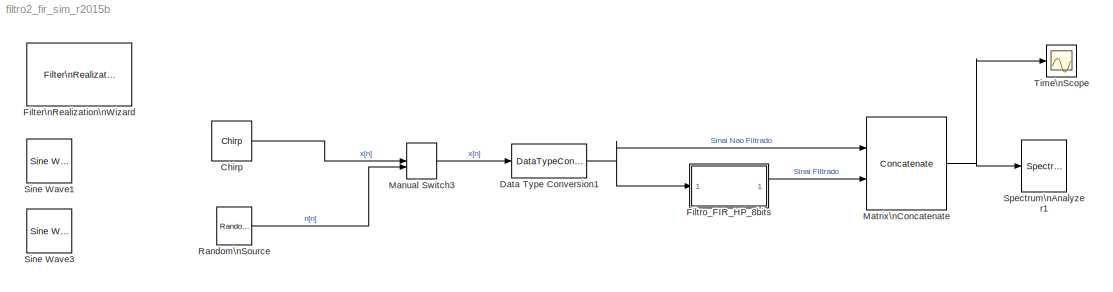
MODEL filtro2_fir_sim_r2015b
KIND model
BLOCK [Reference] Chirp  REF=dspsrcs4/Chirp
  OutputFrames = on
  Ports = [0, 1]
  SID = 1
  SourceBlock = dspsrcs4/Chirp
  SourceType = Chirp
  Ts = Ta
  Tsweep = 1
  datatype = Double
  f0 = 0
  f1 = fa/2
  mode = Unidirectional
  phase = 0
  spf = spf
  sweep = Linear
  t1 = 1
BLOCK [DataTypeConversion] Data Type Conversion1
  RndMeth = Floor
  SID = 22
  SaturateOnIntegerOverflow = off
BLOCK [Reference] Filter\nRealization\nWizard  REF=dsparch4/Filter\nRealization\nWizard
  Ports = []
  SID = 44
  SourceBlock = dsparch4/Filter\nRealization\nWizard
  SourceType = Filter Realization Wizard
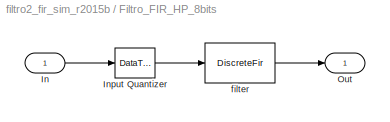
BLOCK [SubSystem] Filtro_FIR_HP_8bits
  Ports = [1, 1]
  RequestExecContextInheritance = off
  SID = 45
  Tag = BlockMethodSubSystem
BLOCK [Inport] Filtro_FIR_HP_8bits/In
  IconDisplay = Port number
  SID = 46
BLOCK [DataTypeConversion] Filtro_FIR_HP_8bits/Input Quantizer
  OutDataTypeStr = fixdt(1,16,15)
  RndMeth = Round
  SID = 47
BLOCK [Outport] Filtro_FIR_HP_8bits/Out
  IconDisplay = Port number
  SID = 49
BLOCK [DiscreteFir] Filtro_FIR_HP_8bits/filter
  AccumDataTypeStr = fixdt(true,25,23)
  CoefDataTypeStr = fixdt(true,8,8)
  Coefficients = [-0.00532709506172761044 0.00150016559407488014 0.00628495279823278012 -0.00636828988327803585 -0.00403452349221034706 0.0111906482400220622 -0.00231967061384724497 -0.0130613282623932899 0.01189990154197915 0.00894421000991611065 -0.0216421575545340458 0.0030362156599829525 0.0265962407774834042 -0.0224925554974460436 -0.0206671663559229203 0.0463858207415749138 -0.00352514866909382297 -0.0696283...<+578ch>
  FilterStructure = Direct form symmetric
  InputPortMap = u0
  OutDataTypeStr = fixdt(true,25,23)
  OutputPortMap = o0
  Ports = [1, 1]
  ProductDataTypeStr = fixdt(true,24,23)
  RndMeth = Convergent
  SID = 48
  TapSumDataTypeStr = fixdt(true,17,15)
BLOCK [ManualSwitch] Manual Switch3
  CurrentSetting = 0
  SID = 33
BLOCK [Concatenate] Matrix\nConcatenate
  ConcatenateDimension = 2
  Mode = Multidimensional array
  Ports = [2, 1]
  SID = 28
BLOCK [Reference] Random\nSource  REF=dspsrcs4/Random\nSource
  CltLength = 12
  DataType = Single
  IsInherit = off
  MaxVal = 1
  MeanVal = 0
  MinVal = -1
  NormMethod = Ziggurat
  OutComplex = Real
  OutputFrames = on
  Ports = [0, 1]
  RepMode = Not repeatable
  SID = 32
  SampFrame = spf
  SampMode = Discrete
  SampTime = Ta
  SourceBlock = dspsrcs4/Random\nSource
  SourceType = Random Source
  SrcType = Uniform
  UserData = DataTag0
  UserDataPersistent = on
  VarVal = 1
  rawSeed = 1
BLOCK [Reference] Sine Wave1  REF=dspsrcs4/Sine Wave
  Amplitude = 1
  CompMethod = Trigonometric fcn
  Frequency = 100
  LastOutDataTypeStr = double
  OutComplex = Real
  OutDataTypeStr = double
  OutputFrames = on
  Phase = 0
  Ports = [0, 1]
  ResetState = Restart at time zero
  SID = 38
  SampleMode = Discrete
  SampleTime = 1/8000
  SamplesPerFrame = 1
  SourceBlock = dspsrcs4/Sine Wave
  SourceType = Sine Wave
  TableSize = Speed
  additionalParams = off
  allowOverrides = on
  dataType = double
  fracBitsMode = Best precision
  numFracBits = 15
  udDataType = sfix(16)
  wordLen = 16
BLOCK [Reference] Sine Wave3  REF=dspsrcs4/Sine Wave
  Amplitude = 1
  CompMethod = Trigonometric fcn
  Frequency = 100
  LastOutDataTypeStr = double
  OutComplex = Real
  OutDataTypeStr = double
  OutputFrames = on
  Phase = 0
  Ports = [0, 1]
  ResetState = Restart at time zero
  SID = 40
  SampleMode = Discrete
  SampleTime = 1/8000
  SamplesPerFrame = 1
  SourceBlock = dspsrcs4/Sine Wave
  SourceType = Sine Wave
  TableSize = Speed
  additionalParams = off
  allowOverrides = on
  dataType = double
  fracBitsMode = Best precision
  numFracBits = 15
  udDataType = sfix(16)
  wordLen = 16
BLOCK [SpectrumAnalyzer] Spectrum\nAnalyzer1
  Ports = [1]
  SID = 30
  ScopeSpecificationString = spbscopes.SpectrumAnalyzerBlockCfg('CurrentConfiguration', extmgr.ConfigurationSet(extmgr.Configuration('Core','General UI',true,'FigureColor',[1 1 1]),extmgr.Configuration('Core','Source UI',true),extmgr.Configuration('Sources','Workspace',false),extmgr.Configuration('Sources','File',false),extmgr.Configuration('Sources','Simulink',false),extmgr.Configuration('Sources','SPTool',false),extmgr.Conf...<+3241ch>
BLOCK [Scope] Time\nScope
  DefaultConfigurationName = spbscopes.TimeScopeBlockCfg
  Floating = off
  NumInputPorts = 1
  Ports = [1]
  SID = 50
  ScopeSpecificationString = spbscopes.TimeScopeBlockCfg('CurrentConfiguration', extmgr.ConfigurationSet(extmgr.Configuration('Core','General UI',true,'FigureColor',[1 1 1]),extmgr.Configuration('Core','Source UI',true),extmgr.Configuration('Sources','WiredSimulink',true),extmgr.Configuration('Visuals','Time Domain',true,'DisplayPropertyDefaults',struct('MinYLimReal','-1.25','MaxYLimReal','1.25','YLabelReal','Amplitude','MinY...<+1664ch>
  UserDataPersistent = on
LINE Chirp:1 -> Manual Switch3:1
NET Data Type Conversion1:1 -> Filtro_FIR_HP_8bits:1, Matrix\nConcatenate:1
LINE Filtro_FIR_HP_8bits/In:1 -> Filtro_FIR_HP_8bits/Input Quantizer:1
LINE Filtro_FIR_HP_8bits/Input Quantizer:1 -> Filtro_FIR_HP_8bits/filter:1
LINE Filtro_FIR_HP_8bits/filter:1 -> Filtro_FIR_HP_8bits/Out:1
LINE Filtro_FIR_HP_8bits:1 -> Matrix\nConcatenate:2
LINE Manual Switch3:1 -> Data Type Conversion1:1
NET Matrix\nConcatenate:1 -> Spectrum\nAnalyzer1:1, Time\nScope:1
LINE Random\nSource:1 -> Manual Switch3:2
note: NET lines group one-source signal fan-out (src -> all destinations, sorted); 1:1 wires keep LINE
